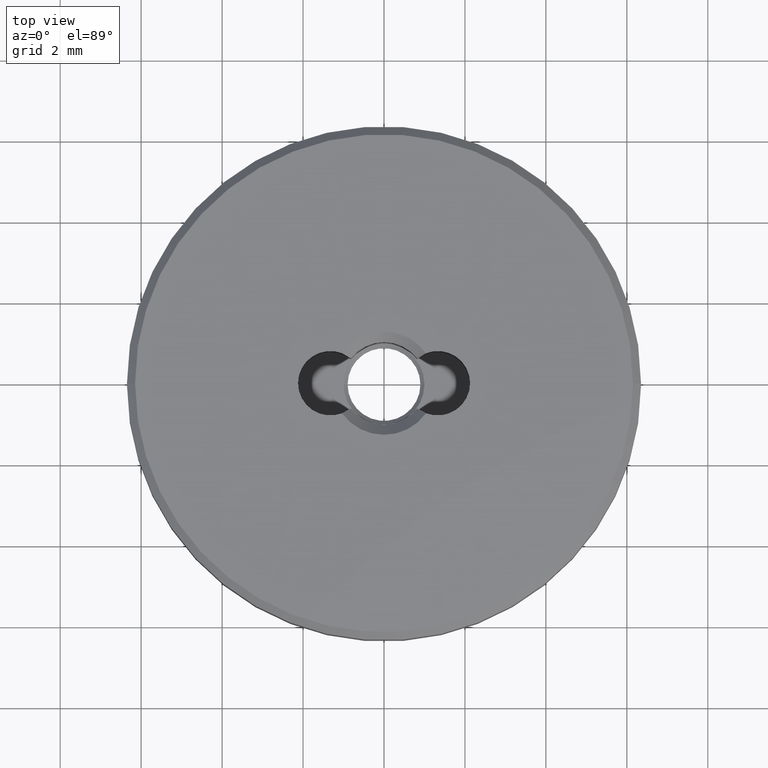
[diagram: clean part render]
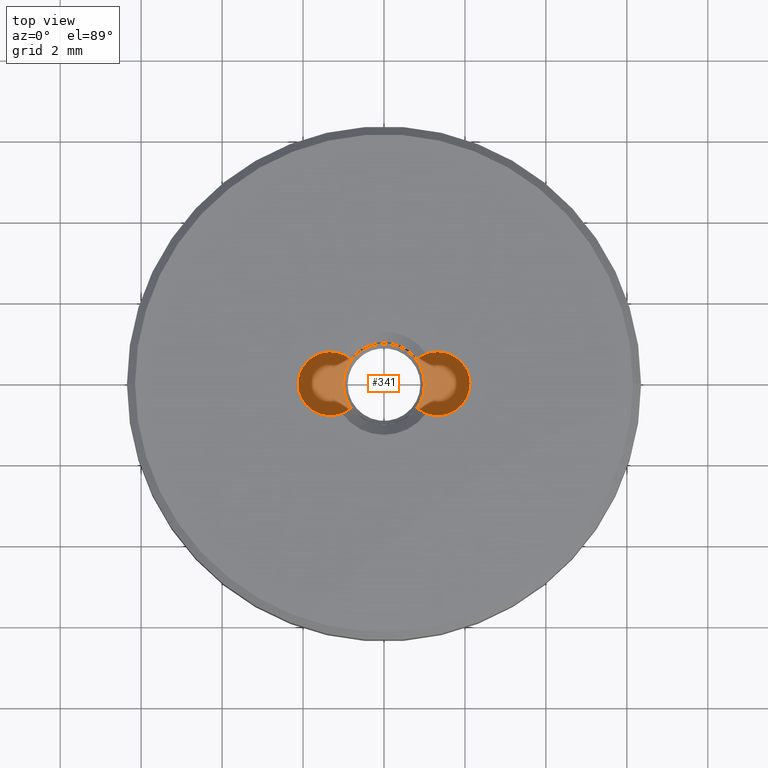
[diagram: same view with one face highlighted and labeled with its STEP entity id]
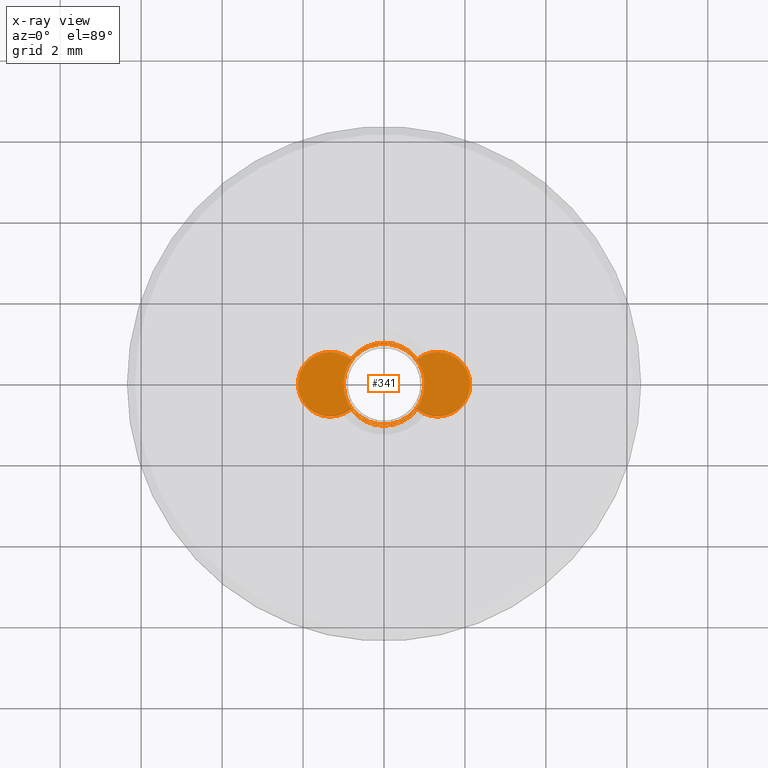
[diagram: x-ray of the same camera — body ghosted, the highlighted face saturated]
A machine part, top view. The second image highlights one B-rep face of the part: STEP entity #341.
The next image is the same camera in x-ray: the body ghosted, the highlighted face saturated — about 0% of this face is hidden behind the body in this view.
In plain terms, the highlighted planar face has unit normal (0, 0, 1).
Its self-contained STEP definition (entity closure, byte-faithful):
#1 = ORIENTED_EDGE ( 'NONE', *, *, #346, .T. ) ;
#9 = DIRECTION ( 'NONE',  ( -0.000000000000000000, -0.000000000000000000, -1.000000000000000000 ) ) ;
#13 = VERTEX_POINT ( 'NONE', #583 ) ;
#23 = DIRECTION ( 'NONE',  ( -0.000000000000000000, -0.000000000000000000, -1.000000000000000000 ) ) ;
#25 = CIRCLE ( 'NONE', #36, 0.8000000000000009326 ) ;
#34 = AXIS2_PLACEMENT_3D ( 'NONE', #693, #23, #399 ) ;
#36 = AXIS2_PLACEMENT_3D ( 'NONE', #108, #609, #667 ) ;
#73 = EDGE_CURVE ( 'NONE', #302, #340, #592, .T. ) ;
#76 = ORIENTED_EDGE ( 'NONE', *, *, #153, .F. ) ;
#78 = PLANE ( 'NONE',  #556 ) ;
#82 = DIRECTION ( 'NONE',  ( 0.000000000000000000, 0.000000000000000000, 1.000000000000000000 ) ) ;
#99 = CIRCLE ( 'NONE', #381, 1.000000000000000888 ) ;
#108 = CARTESIAN_POINT ( 'NONE',  ( -1.324999999999999734, -1.622657008870242488E-16, 0.6000000000000003109 ) ) ;
#130 = CARTESIAN_POINT ( 'NONE',  ( 0.000000000000000000, 0.000000000000000000, 0.6000000000000000888 ) ) ;
#145 = CIRCLE ( 'NONE', #497, 0.8000000000000008216 ) ;
#153 = EDGE_CURVE ( 'NONE', #13, #174, #145, .T. ) ;
#154 = DIRECTION ( 'NONE',  ( 1.000000000000000000, 0.000000000000000000, 0.000000000000000000 ) ) ;
#162 = DIRECTION ( 'NONE',  ( 1.000000000000000000, 0.000000000000000000, 0.000000000000000000 ) ) ;
#174 = VERTEX_POINT ( 'NONE', #706 ) ;
#176 = ORIENTED_EDGE ( 'NONE', *, *, #430, .T. ) ;
#180 = CIRCLE ( 'NONE', #206, 1.000000000000000888 ) ;
#200 = CARTESIAN_POINT ( 'NONE',  ( -0.8174528301886785364, -0.6183816543337289362, 0.6000000000000003109 ) ) ;
#201 = CARTESIAN_POINT ( 'NONE',  ( 0.000000000000000000, 0.000000000000000000, 0.6000000000000000888 ) ) ;
#206 = AXIS2_PLACEMENT_3D ( 'NONE', #694, #260, #320 ) ;
#211 = EDGE_CURVE ( 'NONE', #467, #250, #99, .T. ) ;
#228 = DIRECTION ( 'NONE',  ( -0.000000000000000000, -0.000000000000000000, -1.000000000000000000 ) ) ;
#239 = CARTESIAN_POINT ( 'NONE',  ( 0.8174528301886785364, 0.6183816543337289362, 0.6000000000000003109 ) ) ;
#249 = DIRECTION ( 'NONE',  ( 0.000000000000000000, 0.000000000000000000, 1.000000000000000000 ) ) ;
#250 = VERTEX_POINT ( 'NONE', #359 ) ;
#260 = DIRECTION ( 'NONE',  ( -0.000000000000000000, -0.000000000000000000, -1.000000000000000000 ) ) ;
#270 = EDGE_CURVE ( 'NONE', #302, #13, #617, .T. ) ;
#271 = ORIENTED_EDGE ( 'NONE', *, *, #624, .F. ) ;
#274 = ORIENTED_EDGE ( 'NONE', *, *, #73, .T. ) ;
#302 = VERTEX_POINT ( 'NONE', #239 ) ;
#320 = DIRECTION ( 'NONE',  ( 1.000000000000000000, 0.000000000000000000, 0.000000000000000000 ) ) ;
#340 = VERTEX_POINT ( 'NONE', #503 ) ;
#341 = ADVANCED_FACE ( 'NONE', ( #563, #466 ), #78, .T. ) ;
#346 = EDGE_CURVE ( 'NONE', #464, #174, #434, .T. ) ;
#352 = DIRECTION ( 'NONE',  ( 1.000000000000000000, 0.000000000000000000, 0.000000000000000000 ) ) ;
#359 = CARTESIAN_POINT ( 'NONE',  ( 1.000000000000000888, 0.000000000000000000, 0.6000000000000000888 ) ) ;
#360 = ORIENTED_EDGE ( 'NONE', *, *, #270, .F. ) ;
#381 = AXIS2_PLACEMENT_3D ( 'NONE', #492, #9, #445 ) ;
#399 = DIRECTION ( 'NONE',  ( 1.000000000000000000, -1.776356839400250859E-15, 0.000000000000000000 ) ) ;
#421 = AXIS2_PLACEMENT_3D ( 'NONE', #130, #82, #352 ) ;
#428 = EDGE_LOOP ( 'NONE', ( #1, #76, #360, #274, #271 ) ) ;
#430 = EDGE_CURVE ( 'NONE', #250, #467, #180, .T. ) ;
#434 = CIRCLE ( 'NONE', #421, 1.024999999999999911 ) ;
#445 = DIRECTION ( 'NONE',  ( 1.000000000000000000, 0.000000000000000000, 0.000000000000000000 ) ) ;
#463 = DIRECTION ( 'NONE',  ( 1.000000000000000000, 0.000000000000000000, -0.000000000000000000 ) ) ;
#464 = VERTEX_POINT ( 'NONE', #200 ) ;
#466 = FACE_OUTER_BOUND ( 'NONE', #428, .T. ) ;
#467 = VERTEX_POINT ( 'NONE', #481 ) ;
#468 = AXIS2_PLACEMENT_3D ( 'NONE', #201, #691, #154 ) ;
#481 = CARTESIAN_POINT ( 'NONE',  ( -1.000000000000000888, 1.224646799147354193E-16, 0.6000000000000000888 ) ) ;
#492 = CARTESIAN_POINT ( 'NONE',  ( 0.000000000000000000, 0.000000000000000000, 0.6000000000000000888 ) ) ;
#497 = AXIS2_PLACEMENT_3D ( 'NONE', #555, #228, #162 ) ;
#498 = EDGE_LOOP ( 'NONE', ( #176, #568 ) ) ;
#503 = CARTESIAN_POINT ( 'NONE',  ( -0.8174528301886786474, 0.6183816543337288252, 0.6000000000000003109 ) ) ;
#555 = CARTESIAN_POINT ( 'NONE',  ( 1.324999999999999734, 1.622657008870242488E-16, 0.6000000000000003109 ) ) ;
#556 = AXIS2_PLACEMENT_3D ( 'NONE', #621, #249, #463 ) ;
#563 = FACE_BOUND ( 'NONE', #498, .T. ) ;
#568 = ORIENTED_EDGE ( 'NONE', *, *, #211, .T. ) ;
#583 = CARTESIAN_POINT ( 'NONE',  ( 2.125000000000000888, 1.622657008870242488E-16, 0.6000000000000003109 ) ) ;
#592 = CIRCLE ( 'NONE', #468, 1.024999999999999911 ) ;
#609 = DIRECTION ( 'NONE',  ( -0.000000000000000000, -0.000000000000000000, -1.000000000000000000 ) ) ;
#617 = CIRCLE ( 'NONE', #34, 0.8000000000000008216 ) ;
#621 = CARTESIAN_POINT ( 'NONE',  ( 0.000000000000000000, 0.000000000000000000, 0.6000000000000000888 ) ) ;
#624 = EDGE_CURVE ( 'NONE', #464, #340, #25, .T. ) ;
#667 = DIRECTION ( 'NONE',  ( 1.000000000000000000, 0.000000000000000000, 0.000000000000000000 ) ) ;
#691 = DIRECTION ( 'NONE',  ( 0.000000000000000000, 0.000000000000000000, 1.000000000000000000 ) ) ;
#693 = CARTESIAN_POINT ( 'NONE',  ( 1.324999999999999734, 1.622657008870242488E-16, 0.6000000000000003109 ) ) ;
#694 = CARTESIAN_POINT ( 'NONE',  ( 0.000000000000000000, 0.000000000000000000, 0.6000000000000000888 ) ) ;
#706 = CARTESIAN_POINT ( 'NONE',  ( 0.8174528301886786474, -0.6183816543337288252, 0.6000000000000003109 ) ) ;